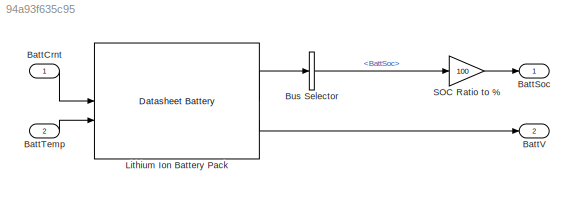
MODEL slx_94a93f635c95
KIND model
CONFIG AbsTol = auto
CONFIG EnableMultiTasking = off
CONFIG FixedStep = auto
CONFIG MaxStep = auto
CONFIG MinStep = auto
CONFIG RelTol = 1e-3
CONFIG SampleTimeConstraint = Unconstrained
CONFIG SolverName = VariableStepAuto
CONFIG StartTime = 0.0
CONFIG StopTime = 10.0
BLOCK [Inport] BattCrnt
BLOCK [Outport] BattSoc
  VectorParamsAs1DForOutWhenUnconnected = off
BLOCK [Inport] BattTemp
  Port = 2
BLOCK [Outport] BattV
  Port = 2
  VectorParamsAs1DForOutWhenUnconnected = off
BLOCK [BusSelector] Bus Selector
  OutputSignals = BattSoc
BLOCK [Reference] Lithium Ion Battery Pack  REF=autolibdatasheetbattery/Datasheet Battery
  SourceBlock = autolibdatasheetbattery/Datasheet Battery
  SourceType = Datasheet Battery
BLOCK [Gain] SOC Ratio to %
  Gain = 100
LINE BattCrnt:1 -> Lithium Ion Battery Pack:1
LINE BattTemp:1 -> Lithium Ion Battery Pack:2
LINE Bus Selector:1 -> SOC Ratio to %:1
LINE Lithium Ion Battery Pack:1 -> Bus Selector:1
LINE Lithium Ion Battery Pack:2 -> BattV:1
LINE SOC Ratio to %:1 -> BattSoc:1
